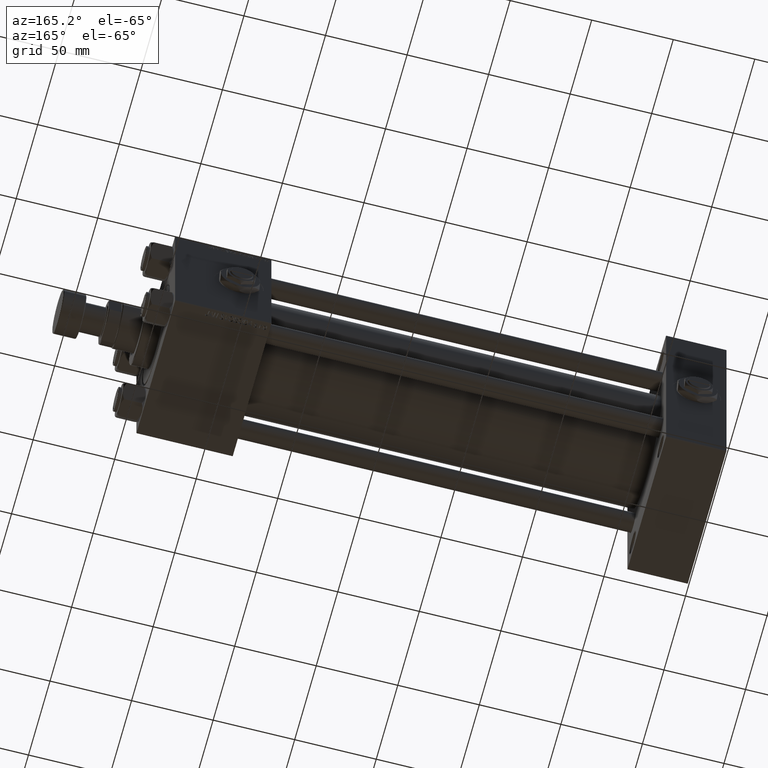
[diagram: clean part render]
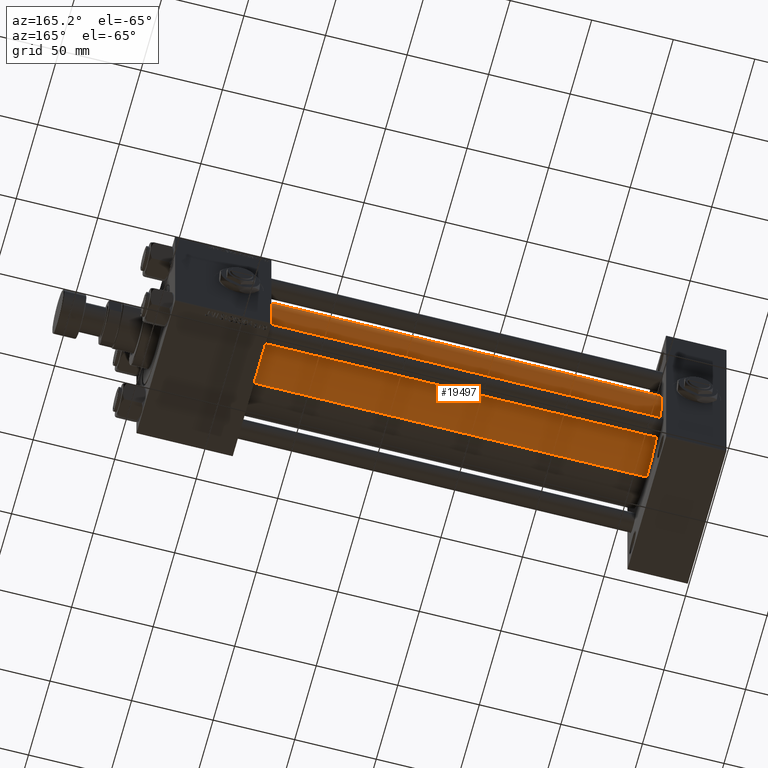
[diagram: same view with one face highlighted and labeled with its STEP entity id]
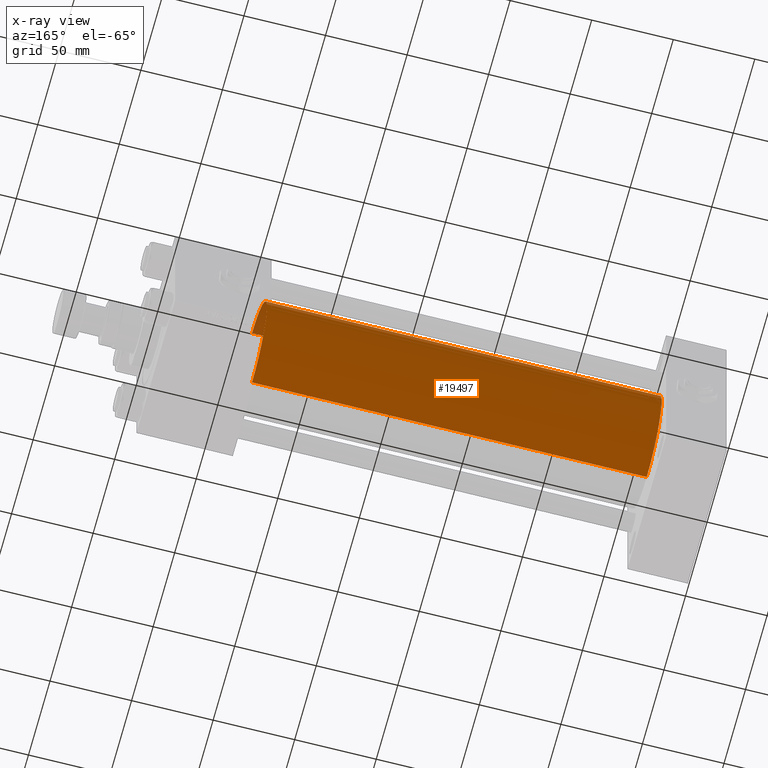
[diagram: x-ray of the same camera — body ghosted, the highlighted face saturated]
A machine part, auxiliary view. The second image highlights one B-rep face of the part: STEP entity #19497.
The next image is the same camera in x-ray: the body ghosted, the highlighted face saturated — about 1% of this face is hidden behind the body in this view.
In plain terms, the highlighted cylindrical surface (partial cylindrical patch) has radius 34.5 mm, axis along (-1, -0, -0).
Its self-contained STEP definition (entity closure, byte-faithful):
#346 = DIRECTION ( 'NONE',  ( -1.000000000000000000, -0.000000000000000000, -0.000000000000000000 ) ) ;
#1445 = ORIENTED_EDGE ( 'NONE', *, *, #34404, .T. ) ;
#1503 = EDGE_CURVE ( 'NONE', #26416, #41561, #36742, .T. ) ;
#6574 = DIRECTION ( 'NONE',  ( 0.000000000000000000, 0.000000000000000000, 1.000000000000000000 ) ) ;
#8128 = CARTESIAN_POINT ( 'NONE',  ( 278.9999999999999432, 1.622946243093158675E-15, -34.50000000000000000 ) ) ;
#9395 = VERTEX_POINT ( 'NONE', #12152 ) ;
#10553 = FACE_OUTER_BOUND ( 'NONE', #48715, .T. ) ;
#11286 = CARTESIAN_POINT ( 'NONE',  ( 278.9999999999999432, -2.602085213965210642E-15, 0.000000000000000000 ) ) ;
#11702 = CARTESIAN_POINT ( 'NONE',  ( 278.9999999999999432, -2.602085213965210642E-15, 34.50000000000000000 ) ) ;
#12152 = CARTESIAN_POINT ( 'NONE',  ( 37.00000000000000711, -2.602085213965210642E-15, 34.50000000000000000 ) ) ;
#12422 = ORIENTED_EDGE ( 'NONE', *, *, #1503, .T. ) ;
#12498 = VECTOR ( 'NONE', #20192, 1000.000000000000000 ) ;
#13092 = VERTEX_POINT ( 'NONE', #40694 ) ;
#19497 = ADVANCED_FACE ( 'NONE', ( #10553 ), #23557, .T. ) ;
#20192 = DIRECTION ( 'NONE',  ( -1.000000000000000000, -0.000000000000000000, -0.000000000000000000 ) ) ;
#20337 = CIRCLE ( 'NONE', #26275, 34.50000000000000000 ) ;
#21446 = VECTOR ( 'NONE', #346, 1000.000000000000000 ) ;
#22223 = CARTESIAN_POINT ( 'NONE',  ( 37.00000000000000711, 1.622946243093158675E-15, -34.50000000000000000 ) ) ;
#22574 = ORIENTED_EDGE ( 'NONE', *, *, #47727, .F. ) ;
#23557 = CYLINDRICAL_SURFACE ( 'NONE', #26951, 34.50000000000000000 ) ;
#25936 = DIRECTION ( 'NONE',  ( 1.000000000000000000, 0.000000000000000000, 0.000000000000000000 ) ) ;
#25951 = ORIENTED_EDGE ( 'NONE', *, *, #37543, .F. ) ;
#26275 = AXIS2_PLACEMENT_3D ( 'NONE', #11286, #31211, #35719 ) ;
#26416 = VERTEX_POINT ( 'NONE', #8128 ) ;
#26951 = AXIS2_PLACEMENT_3D ( 'NONE', #43477, #42949, #6574 ) ;
#30989 = AXIS2_PLACEMENT_3D ( 'NONE', #50384, #25936, #37376 ) ;
#31211 = DIRECTION ( 'NONE',  ( 1.000000000000000000, 0.000000000000000000, 0.000000000000000000 ) ) ;
#34404 = EDGE_CURVE ( 'NONE', #41561, #9395, #36076, .T. ) ;
#35719 = DIRECTION ( 'NONE',  ( 0.000000000000000000, 0.000000000000000000, -1.000000000000000000 ) ) ;
#36076 = CIRCLE ( 'NONE', #30989, 34.50000000000000000 ) ;
#36742 = LINE ( 'NONE', #41502, #21446 ) ;
#37376 = DIRECTION ( 'NONE',  ( 0.000000000000000000, 0.000000000000000000, 1.000000000000000000 ) ) ;
#37543 = EDGE_CURVE ( 'NONE', #13092, #9395, #39603, .T. ) ;
#39603 = LINE ( 'NONE', #11702, #12498 ) ;
#40694 = CARTESIAN_POINT ( 'NONE',  ( 278.9999999999999432, -2.602085213965210642E-15, 34.50000000000000000 ) ) ;
#41502 = CARTESIAN_POINT ( 'NONE',  ( 278.9999999999999432, 1.622946243093158675E-15, -34.50000000000000000 ) ) ;
#41561 = VERTEX_POINT ( 'NONE', #22223 ) ;
#42949 = DIRECTION ( 'NONE',  ( -1.000000000000000000, -0.000000000000000000, -0.000000000000000000 ) ) ;
#43477 = CARTESIAN_POINT ( 'NONE',  ( 278.9999999999999432, -2.602085213965210642E-15, 0.000000000000000000 ) ) ;
#47727 = EDGE_CURVE ( 'NONE', #26416, #13092, #20337, .T. ) ;
#48715 = EDGE_LOOP ( 'NONE', ( #22574, #12422, #1445, #25951 ) ) ;
#50384 = CARTESIAN_POINT ( 'NONE',  ( 37.00000000000000711, -2.602085213965210642E-15, 0.000000000000000000 ) ) ;